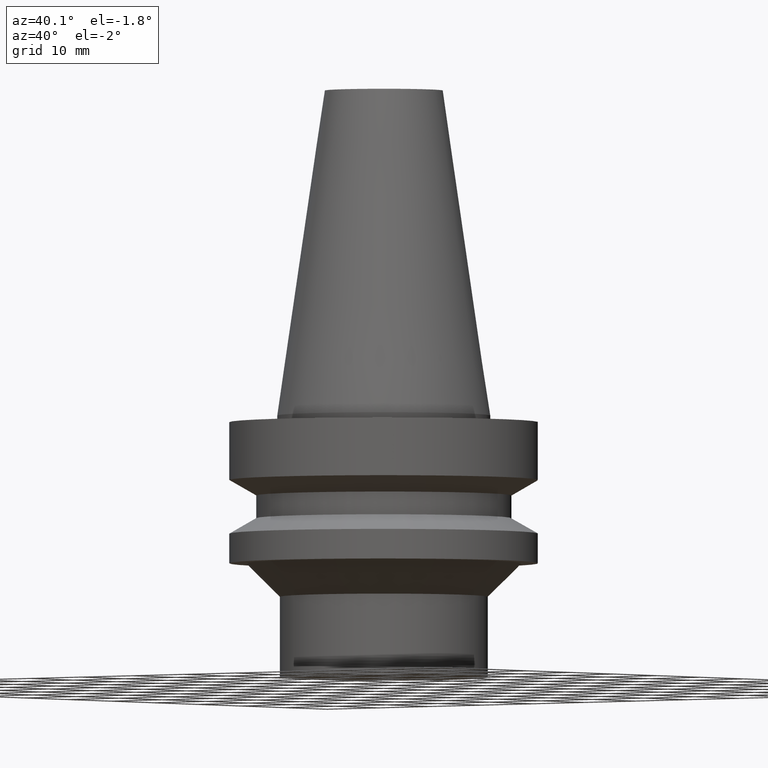
[diagram: clean part render]
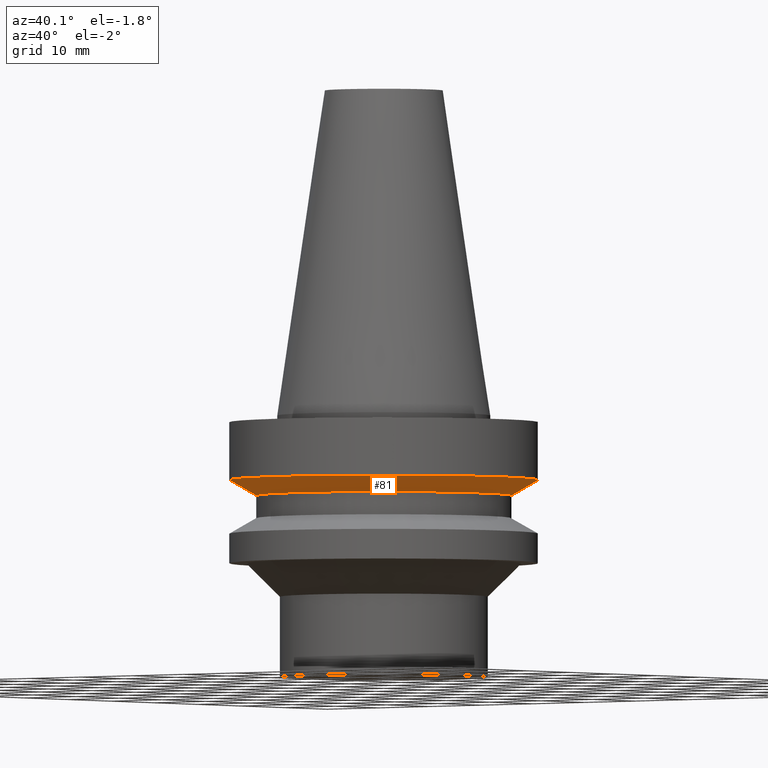
[diagram: same view with one face highlighted and labeled with its STEP entity id]
A machine part, auxiliary view. The second image highlights one B-rep face of the part: STEP entity #81.
In plain terms, the highlighted conical surface has half-angle 60 deg.
Its self-contained STEP definition (entity closure, byte-faithful):
#81=ADVANCED_FACE('',(#105,#106),#107,.T.);
#105=FACE_BOUND('',#142,.T.);
#106=FACE_BOUND('',#143,.T.);
#107=CONICAL_SURFACE('',#144,21.0,1.0471975511966);
#142=EDGE_LOOP('',(#191));
#143=EDGE_LOOP('',(#192));
#144=AXIS2_PLACEMENT_3D('',#193,#194,#195);
#191=ORIENTED_EDGE('',*,*,#232,.F.);
#192=ORIENTED_EDGE('',*,*,#231,.T.);
#193=CARTESIAN_POINT('',(6.58535479505722E-016,1.31707095901144E-015,-10.7547005383792));
#194=DIRECTION('',(-6.12323399573677E-017,-1.22464679914735E-016,1.0));
#195=DIRECTION('',(-1.23259516440783E-032,1.0,1.22464679914735E-016));
#231=EDGE_CURVE('',#248,#248,#249,.T.);
#232=EDGE_CURVE('',#250,#250,#251,.T.);
#248=VERTEX_POINT('',#272);
#249=CIRCLE('',#273,23.0);
#250=VERTEX_POINT('',#274);
#251=CIRCLE('',#275,19.0);
#272=CARTESIAN_POINT('',(5.87830463590729E-016,23.0,-9.6));
#273=AXIS2_PLACEMENT_3D('',#301,#302,#303);
#274=CARTESIAN_POINT('',(7.29240495420715E-016,19.0,-11.9094010767585));
#275=AXIS2_PLACEMENT_3D('',#304,#305,#306);
#301=CARTESIAN_POINT('',(5.8783046359073E-016,1.17566092718146E-015,-9.6));
#302=DIRECTION('',(6.12323399573677E-017,1.22464679914735E-016,-1.0));
#303=DIRECTION('',(-1.23259516440783E-032,1.0,1.22464679914735E-016));
#304=CARTESIAN_POINT('',(7.29240495420715E-016,1.45848099084143E-015,-11.9094010767585));
#305=DIRECTION('',(6.12323399573677E-017,1.22464679914735E-016,-1.0));
#306=DIRECTION('',(-1.23259516440783E-032,1.0,1.22464679914735E-016));